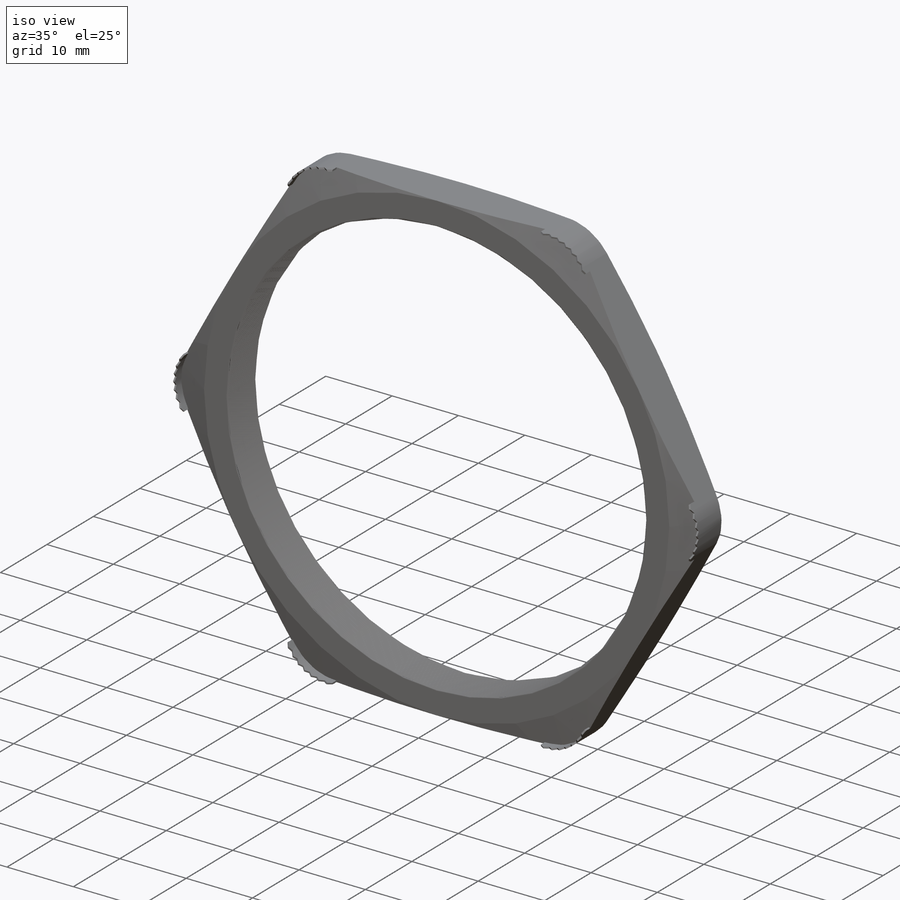
[diagram: iso view]
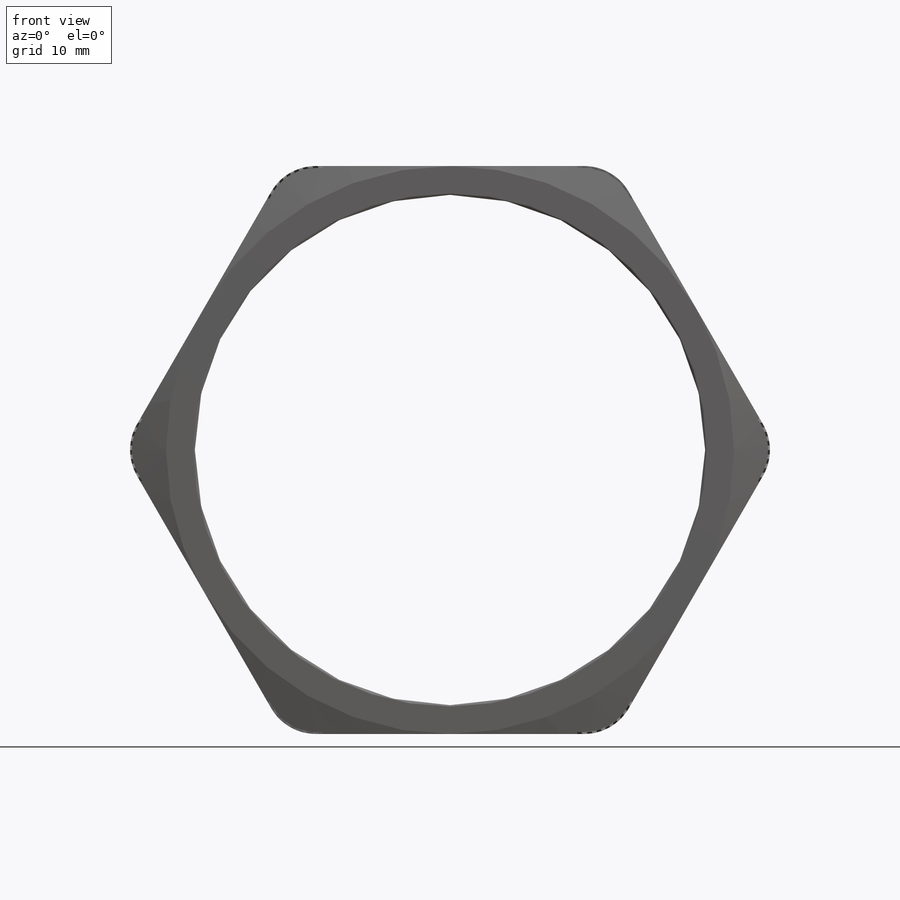
[diagram: front view]
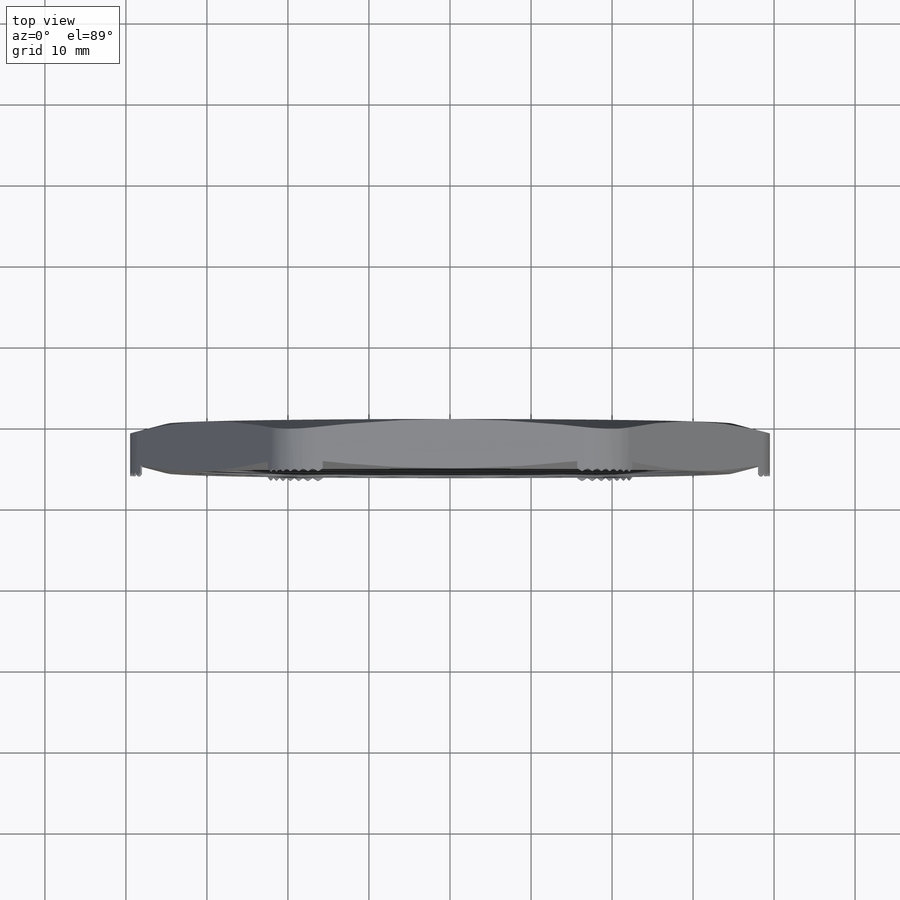
[diagram: top view]
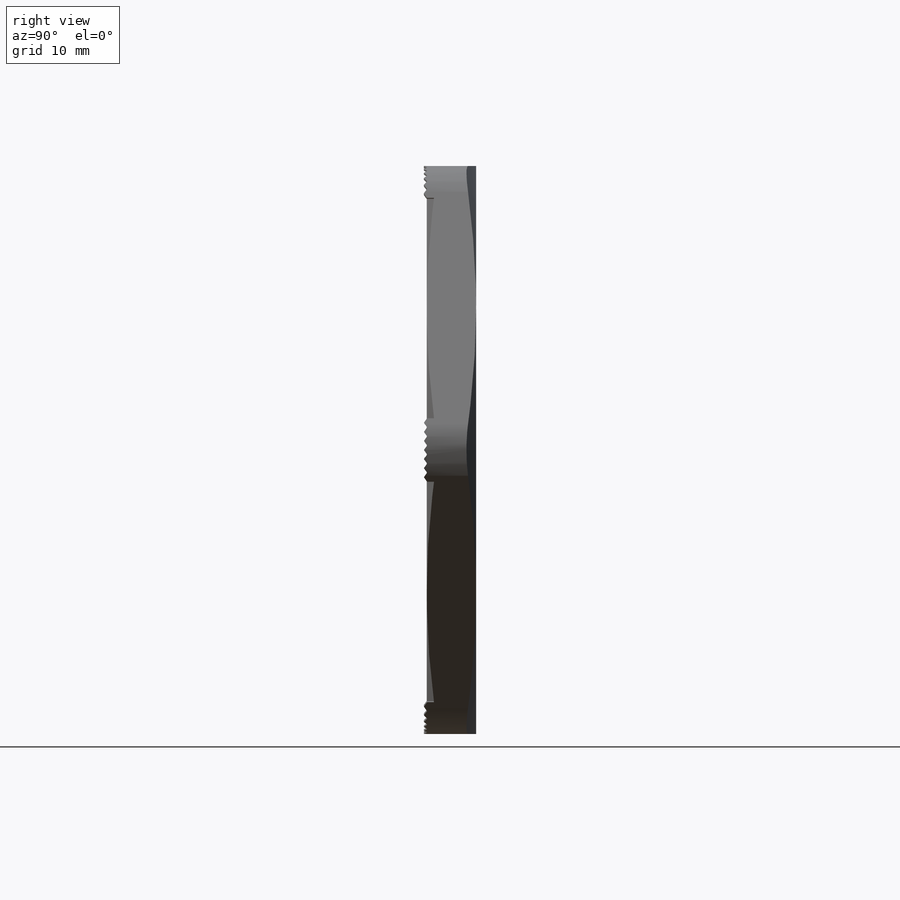
[diagram: right view]
SOLIDWORKS PART (.sldprt)
format: sldprt  version: not decoded by parser v0  size: 481,792 bytes
history: native  units: mm
features: sketch x6, cut_extrude x3, extrude x2, fillet x2, pattern_circular x2, material x1, cut_revolve x1, pattern_linear x1, plane x1 (+13 scaffold rows collapsed)
feature tree (32):
  scaffold x13  (default folders/planes/origin — collapsed)
  material  "Material <not specified>"
  sketch  "Sketch1"  dims[TS=62.992mm H=70.104mm]
  extrude  "Extrude1"  Depth=6.096mm G=6.096mm
  fillet  "Fillet1"  Radius=6.35mm
  sketch  "Sketch2"  dims[D1=0.8636mm D2=0.8636mm OFFSET=0.2286mm]
  fillet  "Fillet3"  Radius=0.2032mm
  sketch  "Sketch3"  dims[c1.D1=~0.266128mm c2.D1=60.0deg c2.D2=~0.323396mm c3.D2=60.0deg c3.D3=0.254mm]
  cut_revolve  "Cut-Revolve1"  Angle=360deg
  pattern_linear  "LPattern1"  Count1=20 Count2=1 Spacing1=0.3048mm Spacing2=50mm
  sketch  "Sketch4"
  cut_extrude  "Cut-Extrude1"  [1 undecoded]
  sketch  "Sketch5"
  cut_extrude  "Cut-Extrude2"  [1 undecoded]
  extrude  "Extrude2"  Depth=0.9398mm
  plane  "Plane1"
  sketch  "Sketch7"  dims[c1.D1=~0.98679mm c1.D2=~0.398662mm c1.D3=0.5588mm c1.D4=~0.330385mm c1.D5=~0.260769mm c2.D4=~0.481024mm c2.D2=~0.592074mm]
  cut_extrude  "Cut-Extrude4"  [1 undecoded]
  pattern_circular  "CirPattern1"  Count=6 Angle=360deg
  pattern_circular  "CirPattern2"  Count=6 Angle=360deg
decode coverage: 12 of 17 modeling features carry decoded parameters
note: ~ marks probable driven/reference dimensions
note: 3 parameter values undecoded
summary: no parameter record found for 3 features
note: suppression state not decoded; provenance and decode notes live in map.json
